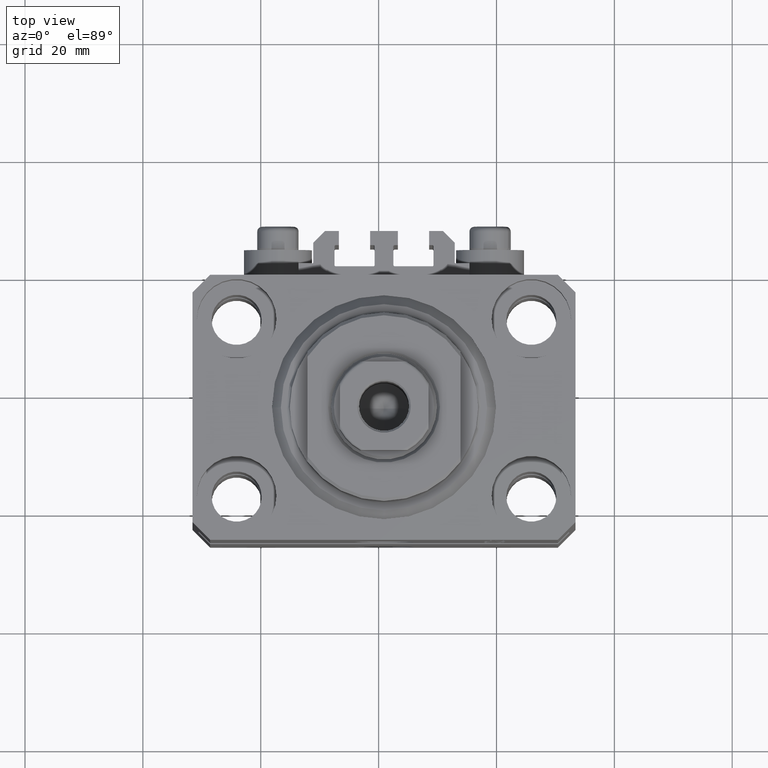
[diagram: clean part render]
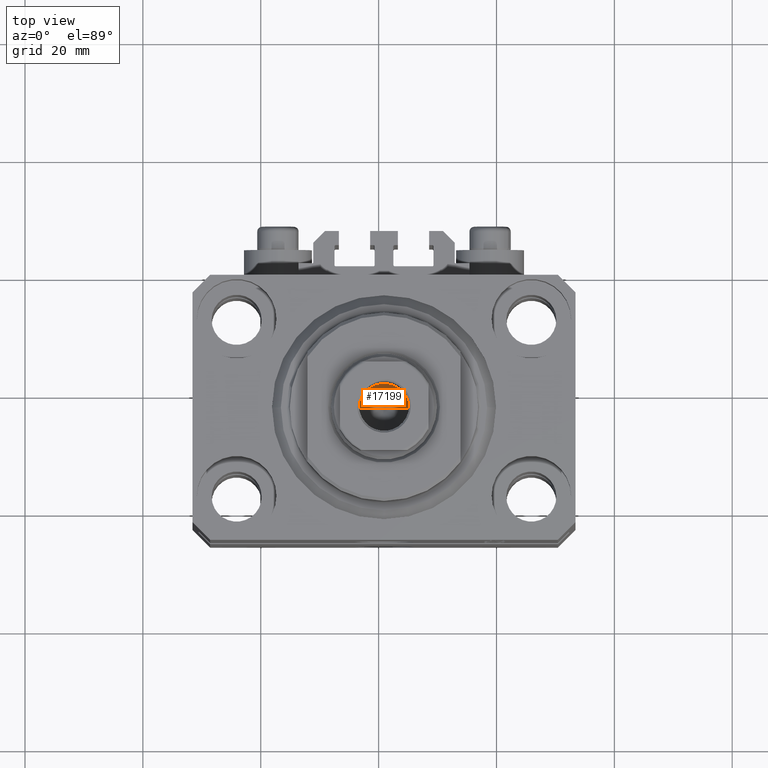
[diagram: same view with one face highlighted and labeled with its STEP entity id]
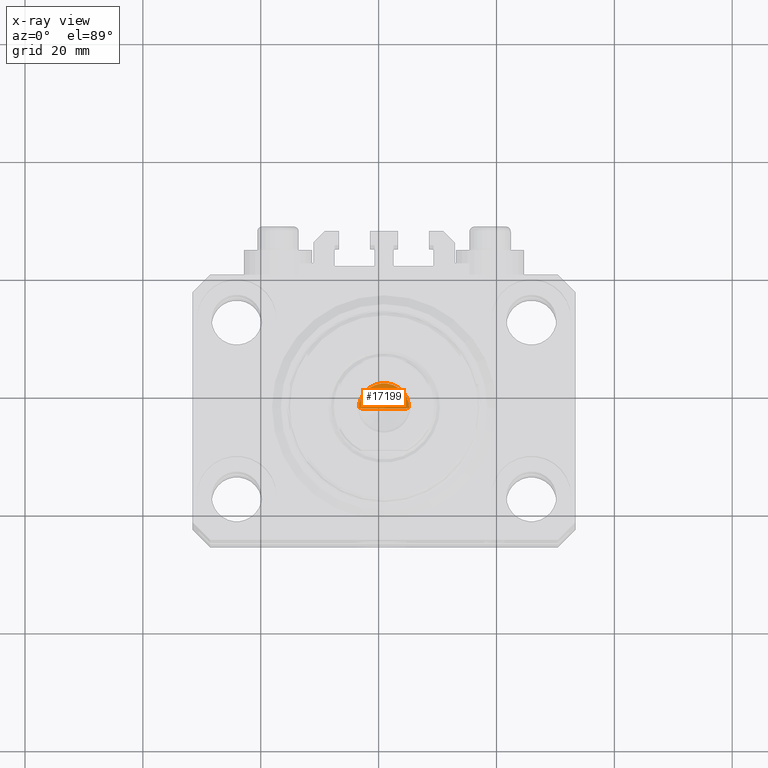
[diagram: x-ray of the same camera — body ghosted, the highlighted face saturated]
A machine part, top view. The second image highlights one B-rep face of the part: STEP entity #17199.
The next image is the same camera in x-ray: the body ghosted, the highlighted face saturated — about 0% of this face is hidden behind the body in this view.
In plain terms, the highlighted conical surface has half-angle 59 deg.
Its self-contained STEP definition (entity closure, byte-faithful):
#3082 = DIRECTION ( 'NONE',  ( 0.8571673007021117785, 0.000000000000000000, 0.5150380749100550437 ) ) ;
#3612 = LINE ( 'NONE', #40558, #45571 ) ;
#6099 = VERTEX_POINT ( 'NONE', #21155 ) ;
#7426 = DIRECTION ( 'NONE',  ( -0.8571673007021117785, 1.049727191138617956E-16, 0.5150380749100550437 ) ) ;
#8735 = ORIENTED_EDGE ( 'NONE', *, *, #13242, .T. ) ;
#9310 = DIRECTION ( 'NONE',  ( 1.000000000000000000, 0.000000000000000000, 0.000000000000000000 ) ) ;
#9948 = DIRECTION ( 'NONE',  ( 1.000000000000000000, 0.000000000000000000, 0.000000000000000000 ) ) ;
#10437 = ORIENTED_EDGE ( 'NONE', *, *, #16722, .T. ) ;
#11225 = AXIS2_PLACEMENT_3D ( 'NONE', #28152, #41972, #9310 ) ;
#13242 = EDGE_CURVE ( 'NONE', #22018, #6099, #27205, .T. ) ;
#14519 = CARTESIAN_POINT ( 'NONE',  ( 4.249999999999994671, 0.000000000000000000, 59.00000000000000711 ) ) ;
#16722 = EDGE_CURVE ( 'NONE', #22968, #22018, #35744, .T. ) ;
#17199 = ADVANCED_FACE ( 'NONE', ( #21131 ), #30365, .F. ) ;
#21131 = FACE_OUTER_BOUND ( 'NONE', #23663, .T. ) ;
#21155 = CARTESIAN_POINT ( 'NONE',  ( -4.249999999999994671, 5.204748896376244783E-16, 59.00000000000000711 ) ) ;
#22018 = VERTEX_POINT ( 'NONE', #40548 ) ;
#22968 = VERTEX_POINT ( 'NONE', #36036 ) ;
#23663 = EDGE_LOOP ( 'NONE', ( #33606, #10437, #8735 ) ) ;
#25812 = AXIS2_PLACEMENT_3D ( 'NONE', #32332, #46898, #9948 ) ;
#27205 = CIRCLE ( 'NONE', #11225, 4.249999999999994671 ) ;
#28152 = CARTESIAN_POINT ( 'NONE',  ( 0.000000000000000000, 0.000000000000000000, 59.00000000000000711 ) ) ;
#30365 = CONICAL_SURFACE ( 'NONE', #25812, 4.249999999999994671, 1.029744258676653423 ) ;
#32332 = CARTESIAN_POINT ( 'NONE',  ( 0.000000000000000000, 0.000000000000000000, 59.00000000000000711 ) ) ;
#33606 = ORIENTED_EDGE ( 'NONE', *, *, #45302, .F. ) ;
#35744 = LINE ( 'NONE', #14519, #45588 ) ;
#36036 = CARTESIAN_POINT ( 'NONE',  ( -6.748699724488696097E-15, 0.000000000000000000, 56.44634236913287140 ) ) ;
#40548 = CARTESIAN_POINT ( 'NONE',  ( 4.249999999999994671, 0.000000000000000000, 59.00000000000000711 ) ) ;
#40558 = CARTESIAN_POINT ( 'NONE',  ( -4.249999999999994671, 5.204748896376244783E-16, 59.00000000000000711 ) ) ;
#41972 = DIRECTION ( 'NONE',  ( -0.000000000000000000, -0.000000000000000000, 1.000000000000000000 ) ) ;
#45302 = EDGE_CURVE ( 'NONE', #22968, #6099, #3612, .T. ) ;
#45571 = VECTOR ( 'NONE', #7426, 1000.000000000000000 ) ;
#45588 = VECTOR ( 'NONE', #3082, 1000.000000000000000 ) ;
#46898 = DIRECTION ( 'NONE',  ( -0.000000000000000000, -0.000000000000000000, 1.000000000000000000 ) ) ;